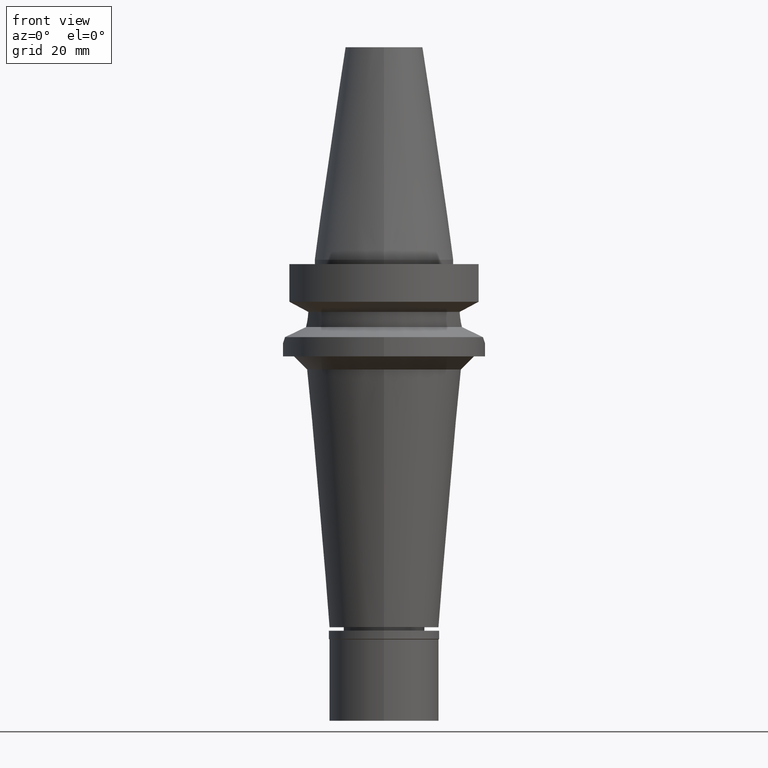
[diagram: clean part render]
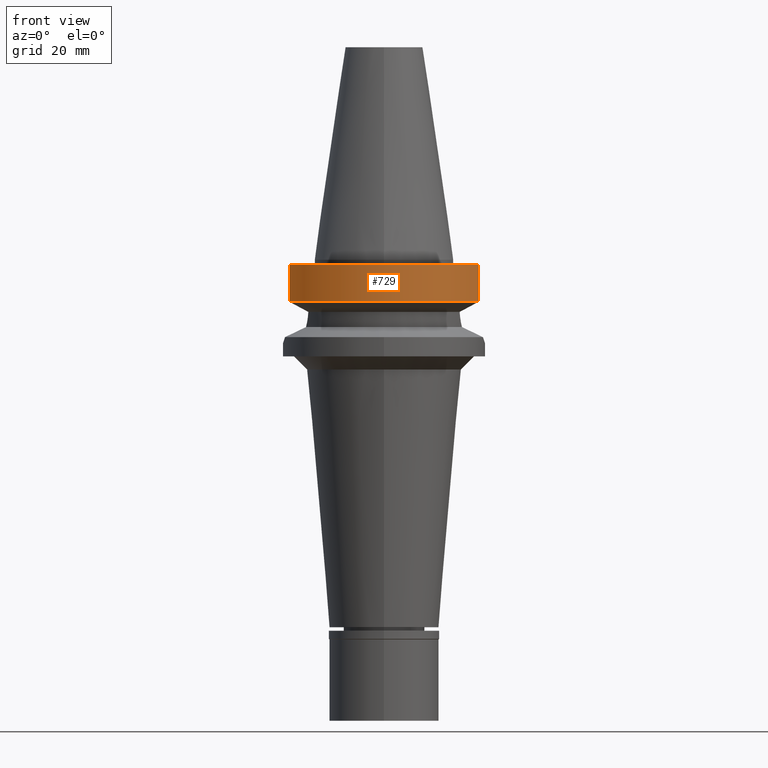
[diagram: same view with one face highlighted and labeled with its STEP entity id]
A machine part, front view. The second image highlights one B-rep face of the part: STEP entity #729.
In plain terms, the highlighted cylindrical surface (partial cylindrical patch) has radius 23 mm, axis along (0, 0, -1).
Its self-contained STEP definition (entity closure, byte-faithful):
#68 = AXIS2_PLACEMENT_3D ( 'NONE', #369, #591, #2265 ) ;
#303 = VERTEX_POINT ( 'NONE', #1832 ) ;
#369 = CARTESIAN_POINT ( 'NONE',  ( 0.0000000000000000000, 0.0000000000000000000, -9.567208369710998639 ) ) ;
#440 = DIRECTION ( 'NONE',  ( 0.0000000000000000000, 0.0000000000000000000, -1.000000000000000000 ) ) ;
#464 = FACE_OUTER_BOUND ( 'NONE', #2425, .T. ) ;
#560 = CIRCLE ( 'NONE', #1415, 23.00000000000000000 ) ;
#587 = EDGE_CURVE ( 'NONE', #1120, #2227, #560, .T. ) ;
#591 = DIRECTION ( 'NONE',  ( 0.0000000000000000000, 0.0000000000000000000, 1.000000000000000000 ) ) ;
#610 = EDGE_CURVE ( 'NONE', #2131, #303, #1413, .T. ) ;
#622 = VECTOR ( 'NONE', #1113, 1000.000000000000114 ) ;
#720 = VECTOR ( 'NONE', #2724, 1000.000000000000114 ) ;
#726 = CYLINDRICAL_SURFACE ( 'NONE', #2791, 23.00000000000000000 ) ;
#729 = ADVANCED_FACE ( 'NONE', ( #464 ), #726, .T. ) ;
#763 = CARTESIAN_POINT ( 'NONE',  ( -21.54524325238000060, -8.049999577366000025, -9.567211146628999074 ) ) ;
#974 = CARTESIAN_POINT ( 'NONE',  ( 0.0000000000000000000, 0.0000000000000000000, 0.0000000000000000000 ) ) ;
#1022 = EDGE_CURVE ( 'NONE', #2131, #2227, #1039, .T. ) ;
#1033 = LINE ( 'NONE', #1066, #720 ) ;
#1039 = LINE ( 'NONE', #2486, #622 ) ;
#1066 = CARTESIAN_POINT ( 'NONE',  ( 21.54524309446999908, -8.050000000000000711, -1.000000000000000000 ) ) ;
#1113 = DIRECTION ( 'NONE',  ( 1.843191754168992707E-08, -4.933165888406983159E-08, 0.9999999999999985567 ) ) ;
#1120 = VERTEX_POINT ( 'NONE', #2811 ) ;
#1197 = DIRECTION ( 'NONE',  ( 0.0000000000000000000, -1.000000000000000000, 0.0000000000000000000 ) ) ;
#1289 = EDGE_CURVE ( 'NONE', #1120, #303, #1033, .T. ) ;
#1413 = CIRCLE ( 'NONE', #68, 23.00000000000000000 ) ;
#1415 = AXIS2_PLACEMENT_3D ( 'NONE', #1508, #2695, #2445 ) ;
#1508 = CARTESIAN_POINT ( 'NONE',  ( 0.0000000000000000000, 0.0000000000000000000, -1.000000000000000000 ) ) ;
#1536 = ORIENTED_EDGE ( 'NONE', *, *, #587, .T. ) ;
#1778 = CARTESIAN_POINT ( 'NONE',  ( -21.54524309446999908, -8.050000000000000711, -1.000000000000000000 ) ) ;
#1832 = CARTESIAN_POINT ( 'NONE',  ( 21.54524309446999908, -8.050000000002000888, -9.567208369710998639 ) ) ;
#2131 = VERTEX_POINT ( 'NONE', #763 ) ;
#2227 = VERTEX_POINT ( 'NONE', #1778 ) ;
#2265 = DIRECTION ( 'NONE',  ( 0.0000000000000000000, -1.000000000000000000, 0.0000000000000000000 ) ) ;
#2304 = ORIENTED_EDGE ( 'NONE', *, *, #1289, .F. ) ;
#2394 = ORIENTED_EDGE ( 'NONE', *, *, #1022, .F. ) ;
#2425 = EDGE_LOOP ( 'NONE', ( #2394, #2886, #2304, #1536 ) ) ;
#2445 = DIRECTION ( 'NONE',  ( 0.0000000000000000000, -1.000000000000000000, 0.0000000000000000000 ) ) ;
#2486 = CARTESIAN_POINT ( 'NONE',  ( -21.54524325238000060, -8.049999577366000025, -9.567211146628999074 ) ) ;
#2695 = DIRECTION ( 'NONE',  ( 0.0000000000000000000, 0.0000000000000000000, -1.000000000000000000 ) ) ;
#2724 = DIRECTION ( 'NONE',  ( -9.134702132273689133E-08, -2.444836106403914732E-07, -0.9999999999999659162 ) ) ;
#2791 = AXIS2_PLACEMENT_3D ( 'NONE', #974, #440, #1197 ) ;
#2811 = CARTESIAN_POINT ( 'NONE',  ( 21.54524309446999908, -8.050000000000000711, -1.000000000000000000 ) ) ;
#2886 = ORIENTED_EDGE ( 'NONE', *, *, #610, .T. ) ;